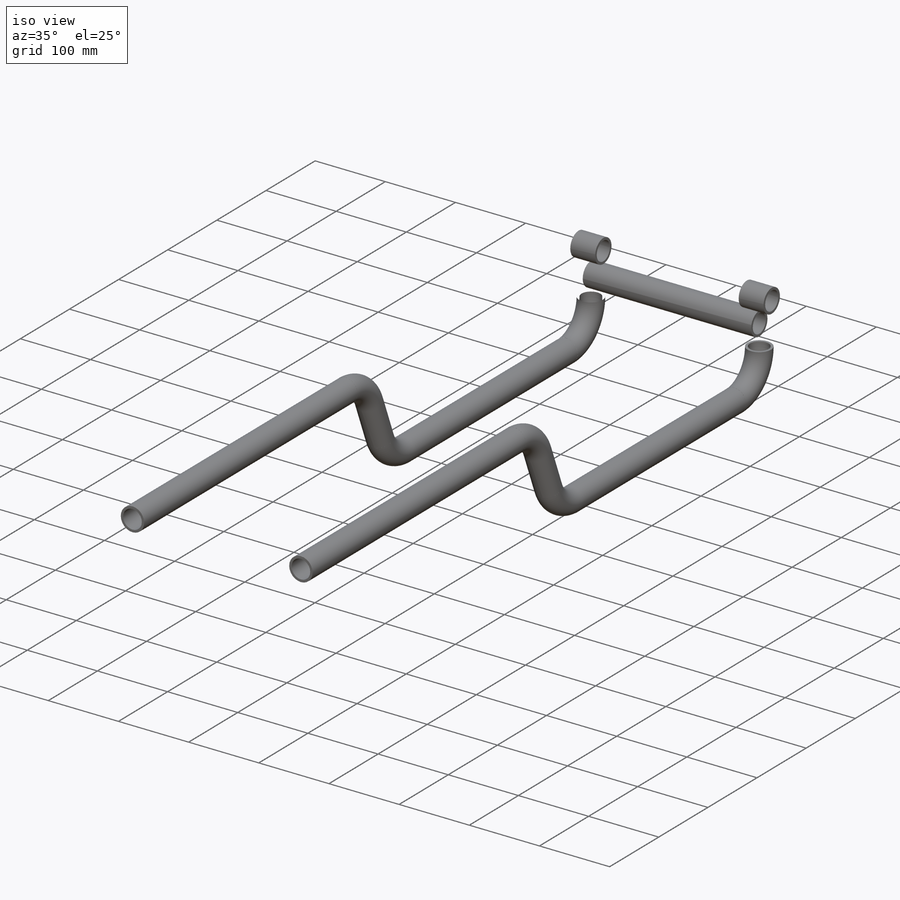
[diagram: iso view]
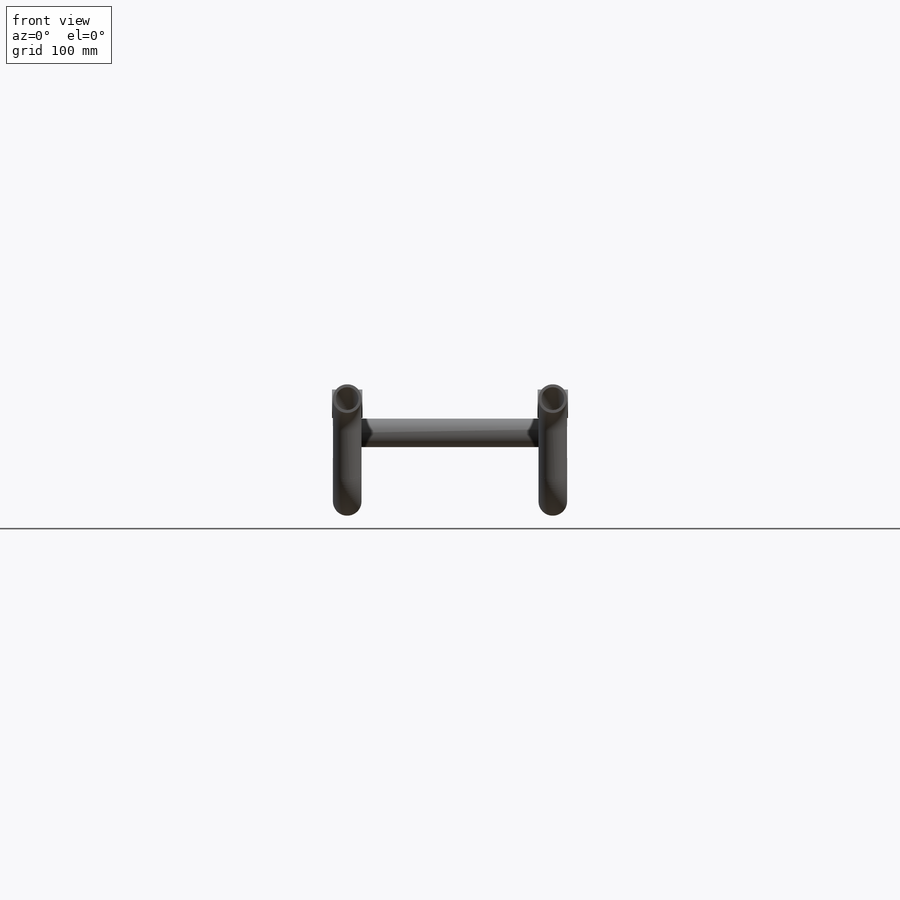
[diagram: front view]
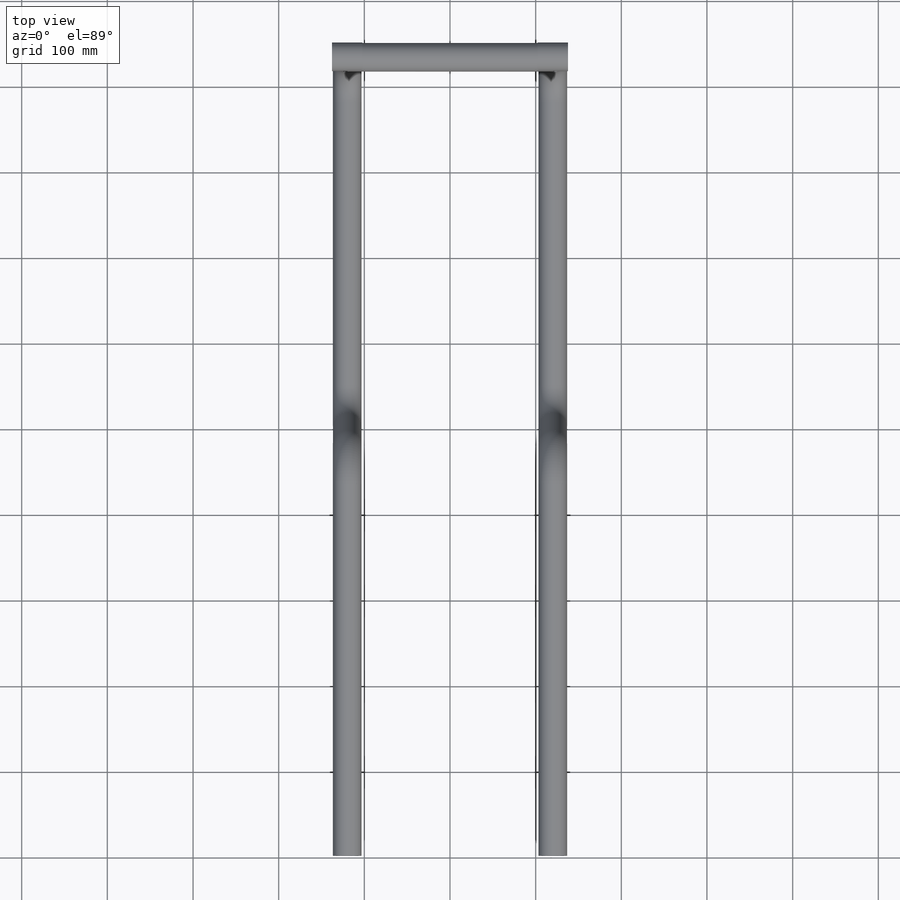
[diagram: top view]
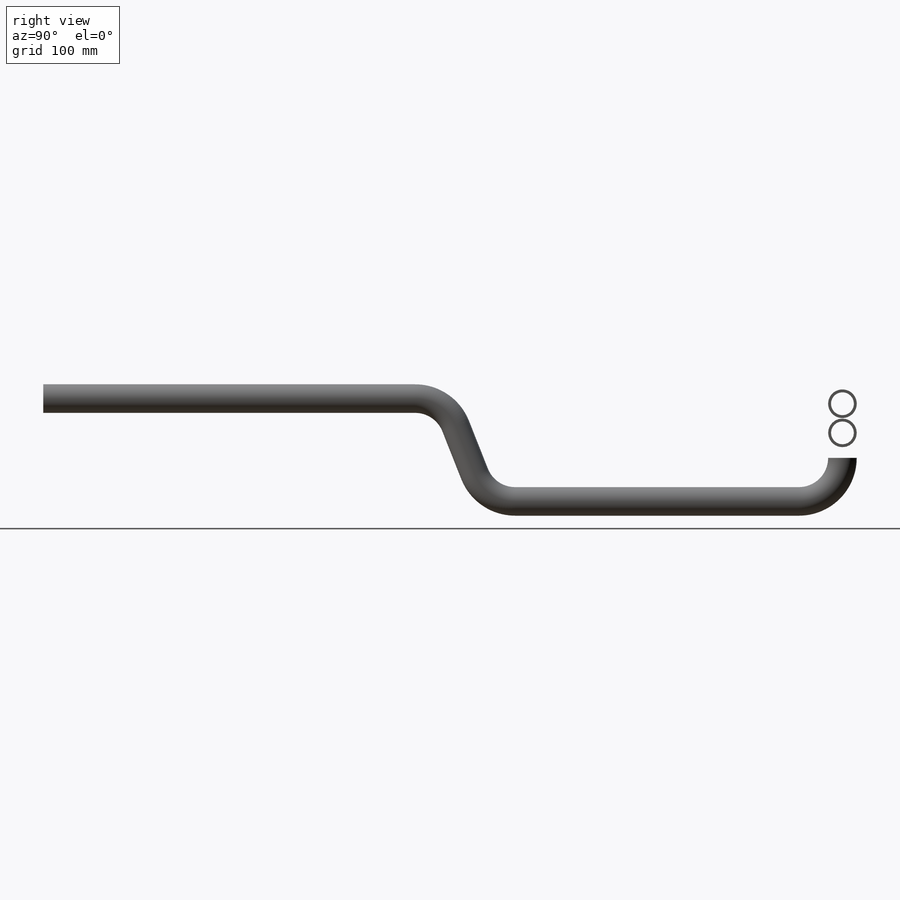
[diagram: right view]
SOLIDWORKS PART (.sldprt)
format: sldprt  version: not decoded by parser v0  size: 747,008 bytes
history: native  units: mm
features: plane x15, sketch x14, mirror x2, cut_extrude x2, extrude x2, material x1 (+10 scaffold rows collapsed)
feature tree (46):
  scaffold x10  (default folders/planes/origin — collapsed)
  material  "Material <sin especificar>"
  plane  "Alzado"
  plane  "Planta"
  plane  "Vista lateral"
  sketch  "Croquis1"  dims[D1=500.0mm D2=120.0mm D3=433.0mm D4=114.0mm]
  plane  "Plano1"  Offset=120mm
  sketch  "Croquis2"  dims[c1.D1=55.0mm c1.D2=50.8mm c2.D1=60.0mm c2.D3=50.8mm c3.D1=50.8mm c3.D3=5.0mm c4.D1=60.0mm c4.D4=60.0mm c4.D5=63.2mm c4.D6=63.2mm c5.D6=90.0deg c5.D7=331.4mm c5.D8=331.4mm c6.D8=~111.592692deg c6.D9=~434.249582mm c7.D9=~111.592692deg c7.D10=~434.249582mm]
  plane  "Plano3"
  sketch  "Croquis4"  dims[D1=17.7mm D2=17.7mm D3=35.4mm]
  plane  "Plano13"
  sketch  "Sketch1"  dims[In_dia=26.6446mm Out_dia=33.401mm D1=25.4mm]
  plane  "Plano14"
  plane  "Plano15"  Offset=30mm
  plane  "Plano5"
  sketch  "Sketch12"  dims[In_dia=26.6446mm Out_dia=33.401mm D1=25.4mm]
  sketch  "Croquis8"
  sketch  "Croquis9"  dims[D1=240.0mm]
  plane  "Plano7"
  sketch  "Sketch13"  dims[In_dia=26.6446mm Out_dia=33.401mm D1=25.4mm]
  plane  "Plano8"  Offset=80mm
  sketch  "Croquis11"
  plane  "Plano9"
  sketch  "Sketch14"  dims[In_dia=26.6446mm Out_dia=33.401mm D1=25.4mm]
  plane  "Plano10"  Offset=98.26mm
  plane  "Plano11"  Offset=100mm
  plane  "Plano12"  Offset=68.26mm
  mirror  "Simetría3"
  cut_extrude  "Cortar-Extruir1"  Depth=50mm
  sketch  "Croquis12"  dims[D1=20.0mm D2=18.0mm]
  extrude  "Saliente-Extruir1"  Depth=10mm
  mirror  "Simetría5"
  cut_extrude  "Cortar-Extruir2"  [1 undecoded]
  sketch  "Croquis8<2>"  dims[D1=320.0mm]
  sketch  "Croquis13"  dims[c1.D1=~10.810961mm c1.D2=~5.725138mm c2.D1=41.17mm c2.D2=18.62mm]
  extrude  "Saliente-Extruir2"  Depth=273.4mm
  sketch  "Croquis14"  dims[D1=0.0mm D2=0.0mm D3=0.0mm D4=0.0mm]
decode coverage: 15 of 20 modeling features carry decoded parameters
note: ~ marks probable driven/reference dimensions
note: 1 parameter value undecoded
note: suppression state not decoded; provenance and decode notes live in map.json
